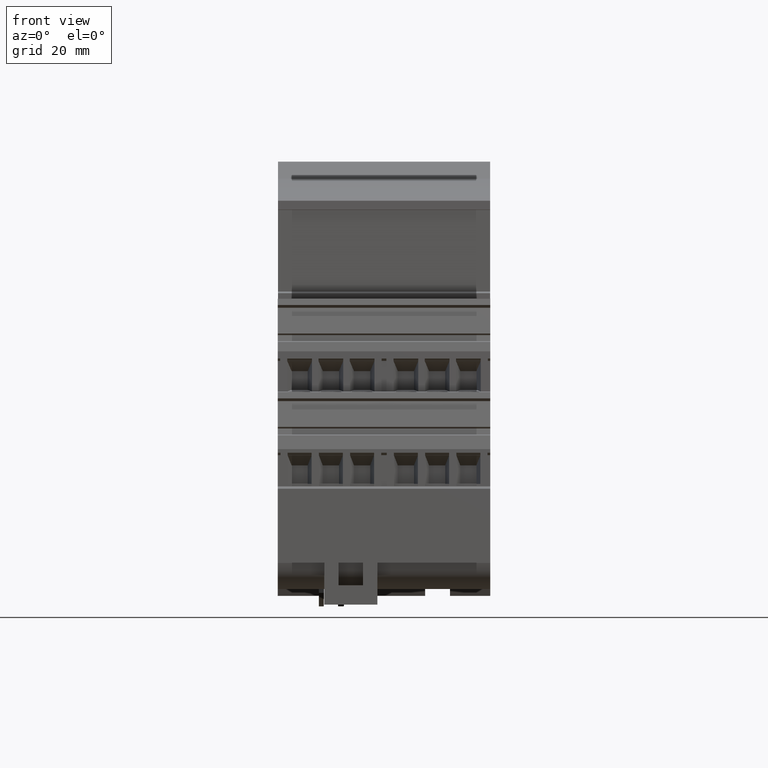
[diagram: clean part render]
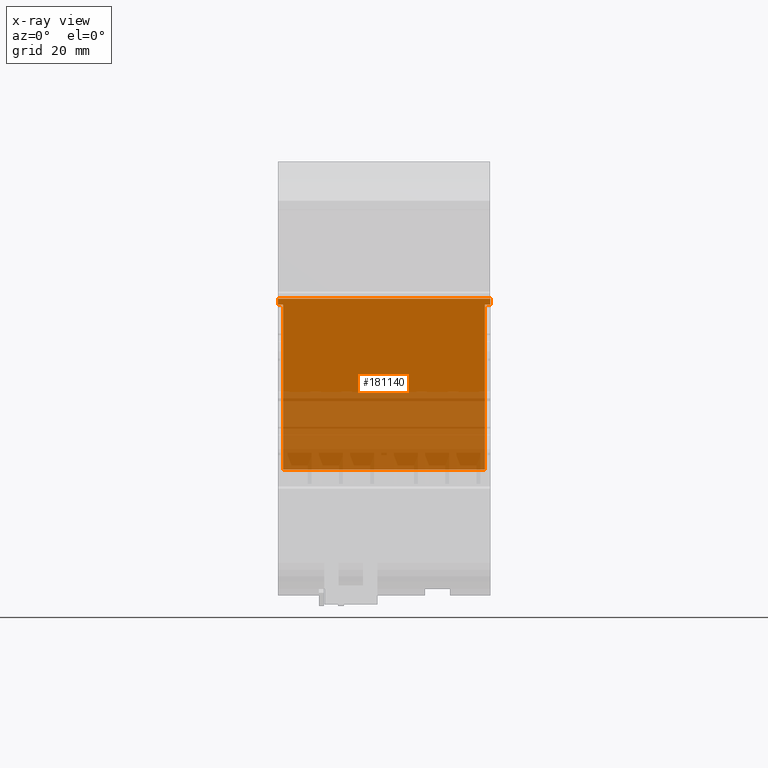
[diagram: x-ray — body ghosted, one internal face saturated and labeled with its STEP entity id]
A machine part, front view, then the same camera in x-ray: the body is ghosted and one INTERNAL B-rep face — a face not visible from any outside direction — is saturated and labeled: STEP entity #181140.
In plain terms, the highlighted planar face has unit normal (0, -1, -0.0035).
Its self-contained STEP definition (entity closure, byte-faithful):
#18830=CARTESIAN_POINT('',(109.12867021919,201.715697708908,
87.3021431980011));
#18840=VERTEX_POINT('',#18830);
#18870=CARTESIAN_POINT('',(109.692454223809,120.960899644033,
87.3021431980011));
#18880=DIRECTION('',(-0.00698126029796146,0.999975630705395,
-7.16979804021935E-18));
#18890=VECTOR('',#18880,1.);
#18900=LINE('',#18870,#18890);
#18910=CARTESIAN_POINT('',(109.135651522021,200.715715985972,
87.3021431980011));
#18920=VERTEX_POINT('',#18910);
#18930=EDGE_CURVE('',#18920,#18840,#18900,.T.);
#70470=CARTESIAN_POINT('',(109.135651522021,200.715715985972,
120.852143198094));
#70480=DIRECTION('',(9.40929702887336E-16,-9.24937744861512E-19,-1.));
#70490=VECTOR('',#70480,1.);
#70500=LINE('',#70470,#70490);
#70510=CARTESIAN_POINT('',(109.135651522021,200.715715985972,
86.402143198001));
#70520=VERTEX_POINT('',#70510);
#70530=EDGE_CURVE('',#18920,#70520,#70500,.T.);
#71310=CARTESIAN_POINT('',(109.692454223809,120.960899644033,
86.402143198001));
#71320=DIRECTION('',(-0.00698126029796146,0.999975630705395,
-6.73611717122515E-18));
#71330=VECTOR('',#71320,1.);
#71340=LINE('',#71310,#71330);
#71350=CARTESIAN_POINT('',(109.327637349858,173.216218605225,
86.402143198001));
#71360=VERTEX_POINT('',#71350);
#71370=EDGE_CURVE('',#71360,#70520,#71340,.T.);
#117220=CARTESIAN_POINT('',(109.135651522021,200.715715985972,
51.902143198001));
#117230=VERTEX_POINT('',#117220);
#117260=CARTESIAN_POINT('',(109.411672220907,161.179305556229,
51.902143198001));
#117270=DIRECTION('',(-0.00698126029796146,0.999975630705395,
-7.16976663451446E-18));
#117280=VECTOR('',#117270,1.);
#117290=LINE('',#117260,#117280);
#117300=CARTESIAN_POINT('',(109.12867021919,201.715697708908,
51.902143198001));
#117310=VERTEX_POINT('',#117300);
#117320=EDGE_CURVE('',#117230,#117310,#117290,.T.);
#180750=CARTESIAN_POINT('',(109.135651522021,200.715715985972,
51.902143198001));
#180760=DIRECTION('',(-0.999975630705395,-0.00698126029796146,
-9.40900315863047E-16));
#180770=DIRECTION('',(0.00698126029796146,-0.999975630705395,
7.16976663451446E-18));
#180780=AXIS2_PLACEMENT_3D('',#180750,#180760,#180770);
#180790=PLANE('',#180780);
#180800=ORIENTED_EDGE('',*,*,#117320,.T.);
#180810=CARTESIAN_POINT('',(109.135651522021,200.715715985972,
103.152143198093));
#180820=DIRECTION('',(9.40929702887336E-16,-9.24937744861512E-19,-1.));
#180830=VECTOR('',#180820,1.);
#180840=LINE('',#180810,#180830);
#180850=CARTESIAN_POINT('',(109.135651522021,200.715715985972,
52.802143198001));
#180860=VERTEX_POINT('',#180850);
#180870=EDGE_CURVE('',#180860,#117230,#180840,.T.);
#180880=ORIENTED_EDGE('',*,*,#180870,.T.);
#180890=CARTESIAN_POINT('',(109.692454223809,120.960899644033,
52.802143198001));
#180900=DIRECTION('',(0.00698126029796146,-0.999975630705395,
6.73611717122515E-18));
#180910=VECTOR('',#180900,1.);
#180920=LINE('',#180890,#180910);
#180930=CARTESIAN_POINT('',(109.327637349858,173.216218605225,
52.802143198001));
#180940=VERTEX_POINT('',#180930);
#180950=EDGE_CURVE('',#180860,#180940,#180920,.T.);
#180960=ORIENTED_EDGE('',*,*,#180950,.F.);
#180970=CARTESIAN_POINT('',(109.327637349858,173.216218605225,
103.152143198093));
#180980=DIRECTION('',(-9.40929702887336E-16,9.24937744861512E-19,1.));
#180990=VECTOR('',#180980,1.);
#181000=LINE('',#180970,#180990);
#181010=EDGE_CURVE('',#180940,#71360,#181000,.T.);
#181020=ORIENTED_EDGE('',*,*,#181010,.F.);
#181030=ORIENTED_EDGE('',*,*,#71370,.F.);
#181040=ORIENTED_EDGE('',*,*,#70530,.T.);
#181050=ORIENTED_EDGE('',*,*,#18930,.F.);
#181060=CARTESIAN_POINT('',(109.12867021919,201.715697708908,
103.152143198093));
#181070=DIRECTION('',(9.40929702887336E-16,-9.24937744861512E-19,-1.));
#181080=VECTOR('',#181070,1.);
#181090=LINE('',#181060,#181080);
#181100=EDGE_CURVE('',#18840,#117310,#181090,.T.);
#181110=ORIENTED_EDGE('',*,*,#181100,.F.);
#181120=EDGE_LOOP('',(#181110,#181050,#181040,#181030,#181020,#180960,
#180880,#180800));
#181130=FACE_OUTER_BOUND('',#181120,.T.);
#181140=ADVANCED_FACE('',(#181130),#180790,.F.);